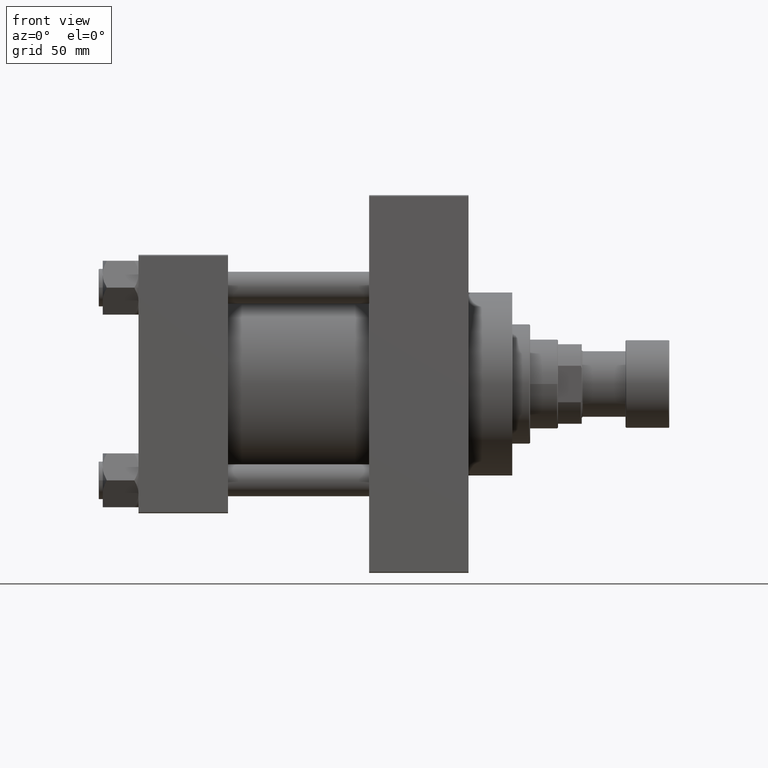
[diagram: clean part render]
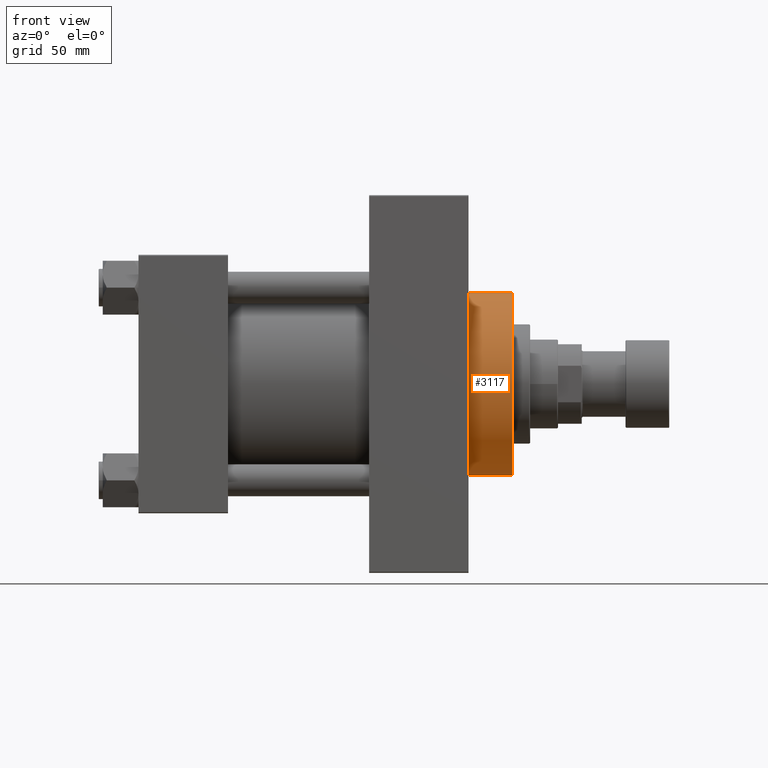
[diagram: same view with one face highlighted and labeled with its STEP entity id]
A machine part, front view. The second image highlights one B-rep face of the part: STEP entity #3117.
In plain terms, the highlighted cylindrical surface (partial cylindrical patch) has radius 46 mm, axis along (-1, -0, -0).
Its self-contained STEP definition (entity closure, byte-faithful):
#839 = CARTESIAN_POINT ( 'NONE',  ( 187.9999999999999716, 0.000000000000000000, 0.000000000000000000 ) ) ;
#2126 = EDGE_LOOP ( 'NONE', ( #32048, #30696, #16405, #20105 ) ) ;
#3117 = ADVANCED_FACE ( 'NONE', ( #44856 ), #22726, .T. ) ;
#4374 = EDGE_CURVE ( 'NONE', #45422, #40077, #14633, .T. ) ;
#4533 = EDGE_CURVE ( 'NONE', #40268, #30167, #33819, .T. ) ;
#5288 = CIRCLE ( 'NONE', #34804, 46.00000000000000000 ) ;
#7198 = AXIS2_PLACEMENT_3D ( 'NONE', #46960, #43544, #36015 ) ;
#10092 = CARTESIAN_POINT ( 'NONE',  ( 187.9999999999999716, 0.000000000000000000, 46.00000000000000000 ) ) ;
#10737 = DIRECTION ( 'NONE',  ( -1.000000000000000000, -0.000000000000000000, -0.000000000000000000 ) ) ;
#10944 = CARTESIAN_POINT ( 'NONE',  ( 165.9999999999999716, 0.000000000000000000, 0.000000000000000000 ) ) ;
#14633 = LINE ( 'NONE', #33113, #31389 ) ;
#16405 = ORIENTED_EDGE ( 'NONE', *, *, #4374, .T. ) ;
#19550 = DIRECTION ( 'NONE',  ( -1.000000000000000000, -0.000000000000000000, -0.000000000000000000 ) ) ;
#20105 = ORIENTED_EDGE ( 'NONE', *, *, #28140, .T. ) ;
#21654 = DIRECTION ( 'NONE',  ( 1.000000000000000000, 0.000000000000000000, 0.000000000000000000 ) ) ;
#22044 = AXIS2_PLACEMENT_3D ( 'NONE', #839, #19550, #37560 ) ;
#22726 = CYLINDRICAL_SURFACE ( 'NONE', #22044, 46.00000000000000000 ) ;
#23605 = DIRECTION ( 'NONE',  ( -1.000000000000000000, -0.000000000000000000, -0.000000000000000000 ) ) ;
#24394 = CARTESIAN_POINT ( 'NONE',  ( 187.9999999999999716, 5.633375276077824704E-15, -46.00000000000000000 ) ) ;
#25779 = DIRECTION ( 'NONE',  ( 0.000000000000000000, 0.000000000000000000, -1.000000000000000000 ) ) ;
#26535 = CARTESIAN_POINT ( 'NONE',  ( 187.9999999999999716, 5.633375276077824704E-15, -46.00000000000000000 ) ) ;
#28140 = EDGE_CURVE ( 'NONE', #40077, #30167, #5288, .T. ) ;
#28300 = VECTOR ( 'NONE', #23605, 1000.000000000000000 ) ;
#30167 = VERTEX_POINT ( 'NONE', #46678 ) ;
#30696 = ORIENTED_EDGE ( 'NONE', *, *, #41538, .F. ) ;
#31389 = VECTOR ( 'NONE', #10737, 1000.000000000000000 ) ;
#32048 = ORIENTED_EDGE ( 'NONE', *, *, #4533, .F. ) ;
#33113 = CARTESIAN_POINT ( 'NONE',  ( 187.9999999999999716, 0.000000000000000000, 46.00000000000000000 ) ) ;
#33819 = LINE ( 'NONE', #26535, #28300 ) ;
#34804 = AXIS2_PLACEMENT_3D ( 'NONE', #10944, #21654, #25779 ) ;
#36015 = DIRECTION ( 'NONE',  ( 0.000000000000000000, 0.000000000000000000, -1.000000000000000000 ) ) ;
#37560 = DIRECTION ( 'NONE',  ( 0.000000000000000000, 0.000000000000000000, 1.000000000000000000 ) ) ;
#40077 = VERTEX_POINT ( 'NONE', #42940 ) ;
#40268 = VERTEX_POINT ( 'NONE', #24394 ) ;
#40592 = CIRCLE ( 'NONE', #7198, 46.00000000000000000 ) ;
#41538 = EDGE_CURVE ( 'NONE', #45422, #40268, #40592, .T. ) ;
#42940 = CARTESIAN_POINT ( 'NONE',  ( 165.9999999999999716, 0.000000000000000000, 46.00000000000000000 ) ) ;
#43544 = DIRECTION ( 'NONE',  ( 1.000000000000000000, 0.000000000000000000, 0.000000000000000000 ) ) ;
#44856 = FACE_OUTER_BOUND ( 'NONE', #2126, .T. ) ;
#45422 = VERTEX_POINT ( 'NONE', #10092 ) ;
#46678 = CARTESIAN_POINT ( 'NONE',  ( 165.9999999999999716, 5.633375276077824704E-15, -46.00000000000000000 ) ) ;
#46960 = CARTESIAN_POINT ( 'NONE',  ( 187.9999999999999716, 0.000000000000000000, 0.000000000000000000 ) ) ;